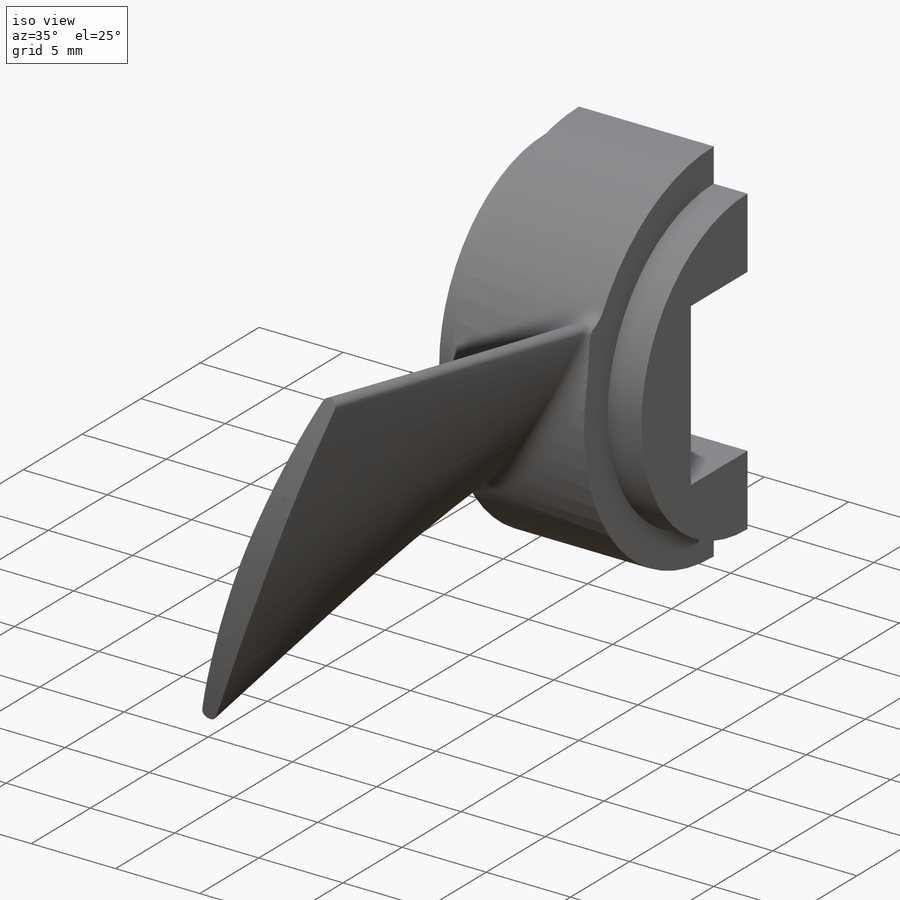
[diagram: iso view]
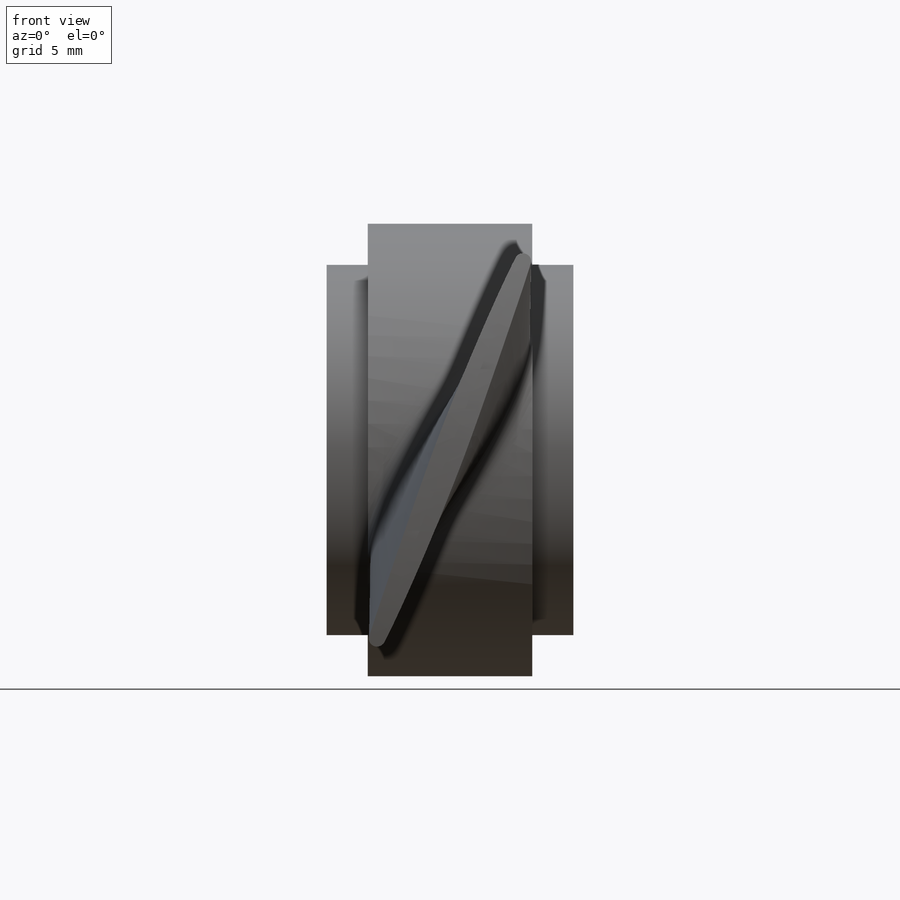
[diagram: front view]
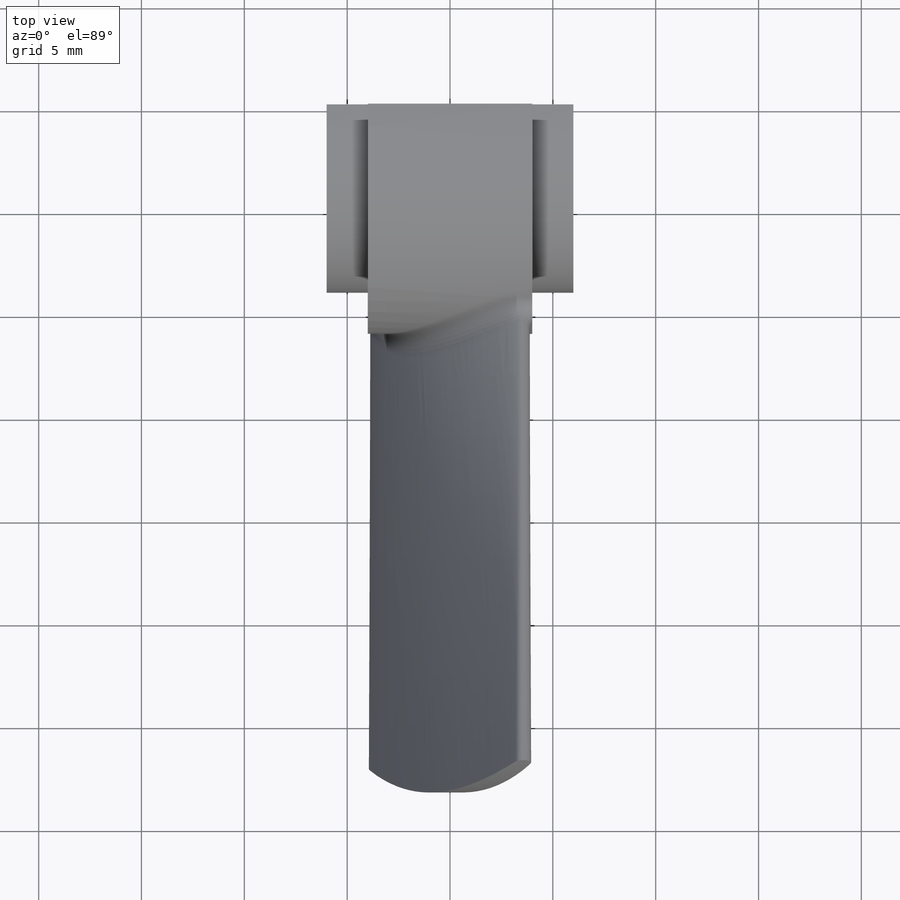
[diagram: top view]
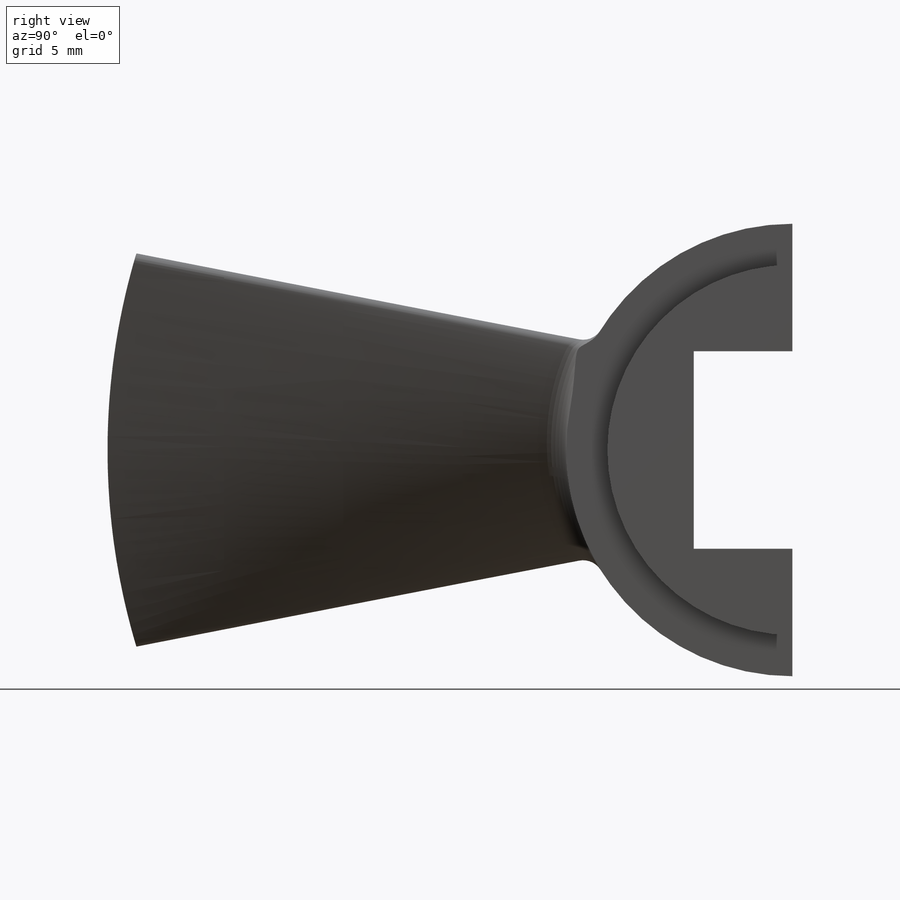
[diagram: right view]
SOLIDWORKS PART (.sldprt)
format: sldprt  version: not decoded by parser v0  size: 480,256 bytes
history: native  units: mm
features: sketch x7, extrude x2, plane x2, material x1, mirror x1, pattern_circular x1, boolean_combine x1, fillet x1, cut_extrude x1 (+13 scaffold rows collapsed)
feature tree (30):
  scaffold x13  (default folders/planes/origin — collapsed)
  material  "Material <not specified>"
  sketch  "Sketch1"  dims[D3=9.0mm D1=4.8mm D2=4.8mm]
  extrude  "Boss-Extrude1"  Depth=12mm
  sketch  "Sketch2"  dims[D1=11.0mm D2=0.5mm]
  extrude  "Boss-Extrude2"  Depth=8mm
  mirror  "Mirror1"
  plane  "Plane1"
  sketch  "Sketch6"  dims[c1.D5=0.8mm c1.D2=~8.00889mm c1.D3=7.0mm c1.D4=7.0mm c2.D2=~1.879297mm c2.D3=10.5mm c2.D6=0.4mm c2.D1=~7.409432mm c3.D2=1.5mm c3.D3=1.5mm c3.D4=0.8mm c3.D5=4.0mm c3.D6=0.1mm c4.D2=8.0mm c5.D2=45.0deg c5.D4=3.0mm c5.D1=3.7mm c5.D6=5.5mm]
  sketch  "Sketch3"  dims[c1.D5=66.6mm c1.D1=~12.846334mm c1.D6=33.5mm c1.D7=~22.669865mm c1.D8=33.3mm c2.D1=67.0mm c2.D2=5.5mm c2.D3=~51.22829mm c3.D3=11.0deg c3.D4=~9.562081mm c3.D2=5.5mm c3.D5=~6.86171mm c4.D2=~3.361817mm c4.D1=~6.635383mm c4.D6=~10.315712mm c4.D8=~19.318438mm c4.D5=~7.409432mm c5.D1=~5.524695mm c5.D6=~9.698617mm c5.D8=~16.230563mm]
  plane  "Plane2"
  sketch  "Sketch7"  dims[c1.D3=~2.867428mm c1.D1=~10.495324mm c1.D2=~1.240004mm c2.D1=~1.531748mm c2.D3=40.0deg c3.D3=~2.159569mm c4.D3=11.5deg c4.D4=~1.240004mm c4.D5=~0.201363mm c4.D2=~1.240004mm c5.D4=~1.256247mm c5.D2=~1.232368mm c6.D4=~1.232368mm c6.D2=~1.232368mm c7.D4=~1.414275mm c7.D5=~1.404861mm c7.D6=4.0mm c7.D2=~3.522408mm c8.D4=~10.550954mm c9.D4=~69.25036deg c9.D2=3.7mm c9.D1=1.5mm c10.D2=1.5mm c10.D3=1.5mm c10.D4=1.5mm c10.D5=1.5mm c10.D6=1.5mm c10.D7=1.5mm c10.D8=1.5mm c10.D9=1.5mm c10.D10=1.5mm c10.D11=1.5mm c10.D12=1.5mm c10.D13=1.5mm c10.D14=1.5mm c10.D15=1.5mm c10.D16=1.5mm c10.D17=1.5mm c10.D18=1.5mm]
  sketch  "3DSketch1"
  pattern_circular  "CirPattern1"  Count=2 Angle=360deg
  boolean_combine  "Combine1"
  fillet  "Fillet1"  Radius=1mm
  sketch  "Sketch9"
  cut_extrude  "Cut-Extrude3"  Depth=11mm
decode coverage: 10 of 14 modeling features carry decoded parameters
note: ~ marks probable driven/reference dimensions
note: suppression state not decoded; provenance and decode notes live in map.json
